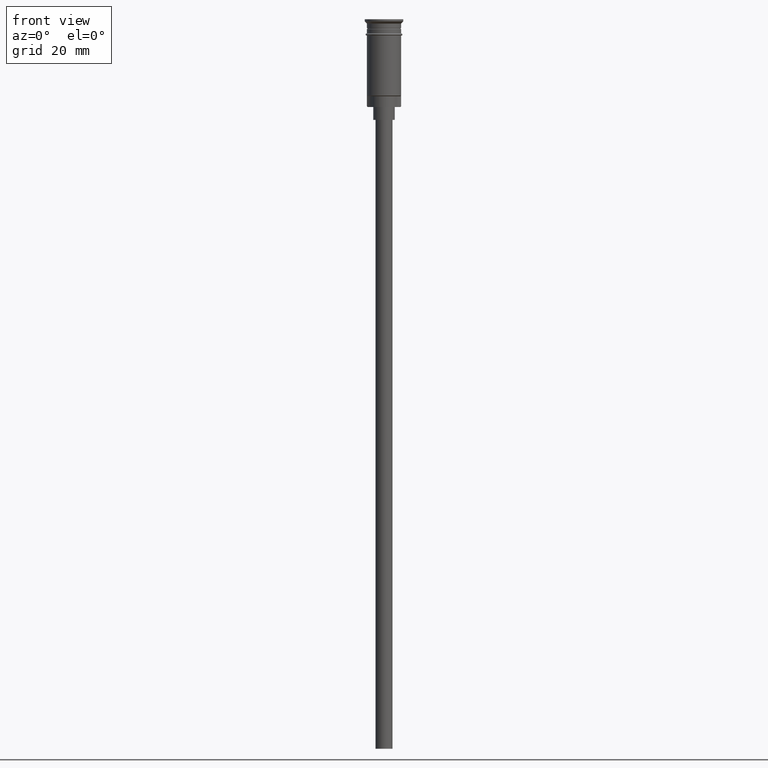
[diagram: clean part render]
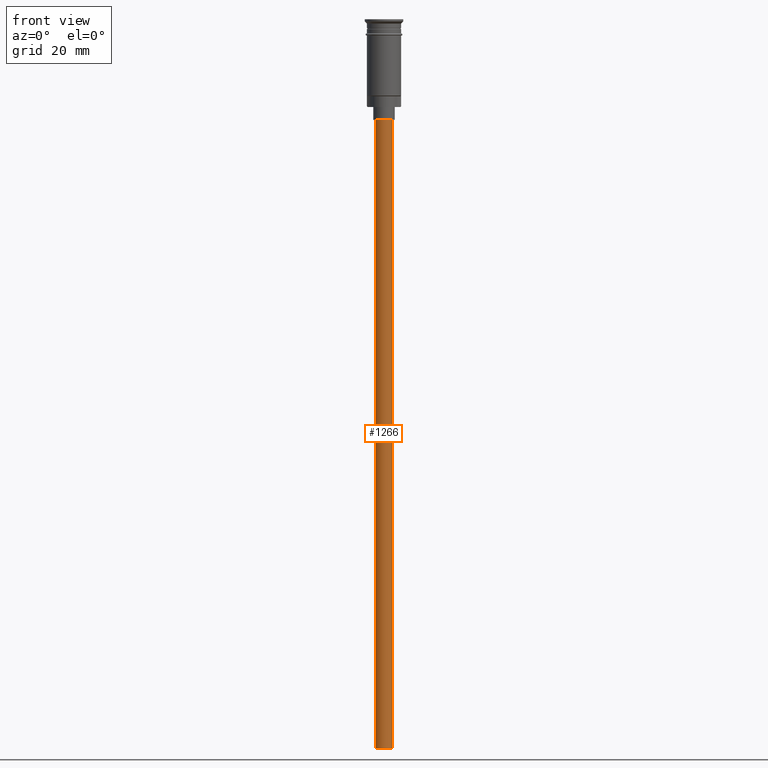
[diagram: same view with one face highlighted and labeled with its STEP entity id]
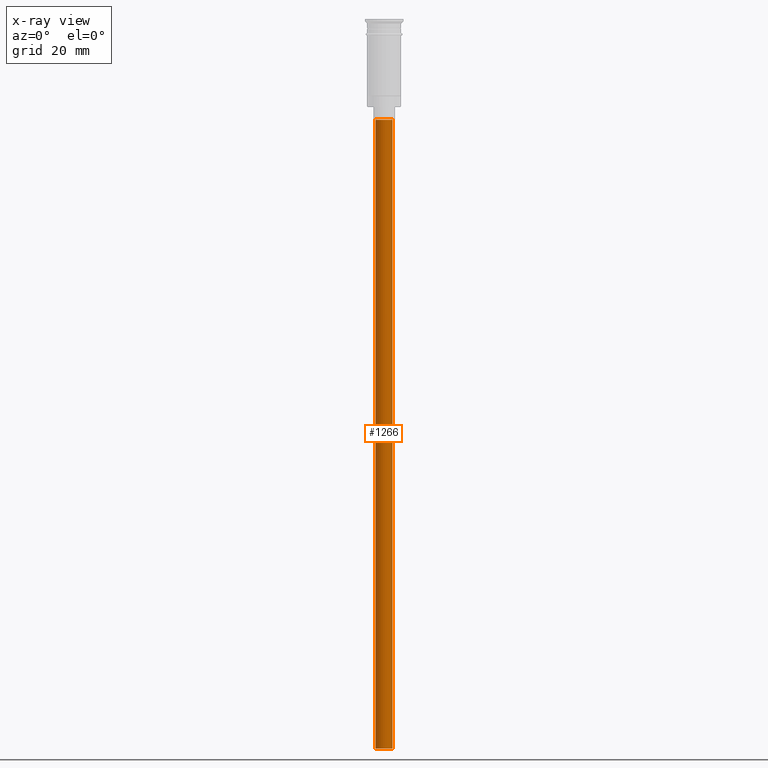
[diagram: x-ray of the same camera — body ghosted, the highlighted face saturated]
A machine part, front view. The second image highlights one B-rep face of the part: STEP entity #1266.
The next image is the same camera in x-ray: the body ghosted, the highlighted face saturated — about 0% of this face is hidden behind the body in this view.
In plain terms, the highlighted cylindrical surface (edge-blend (fillet) strip) has radius 2 mm, axis along (-0, -0, 1).
Its self-contained STEP definition (entity closure, byte-faithful):
#17 = CARTESIAN_POINT ( 'NONE',  ( -2.000000000000000000, 2.449293598294706414E-16, -170.4999999999999716 ) ) ;
#21 = CARTESIAN_POINT ( 'NONE',  ( -2.000000000000000000, 2.449293598294706414E-16, -170.4999999999999716 ) ) ;
#96 = DIRECTION ( 'NONE',  ( -1.000000000000000000, 0.000000000000000000, 0.000000000000000000 ) ) ;
#134 = VECTOR ( 'NONE', #418, 1000.000000000000000 ) ;
#150 = EDGE_CURVE ( 'NONE', #502, #1336, #1538, .T. ) ;
#185 = DIRECTION ( 'NONE',  ( -1.000000000000000000, 0.000000000000000000, 0.000000000000000000 ) ) ;
#193 = CARTESIAN_POINT ( 'NONE',  ( 0.000000000000000000, 0.000000000000000000, -23.49999999999999645 ) ) ;
#214 = VERTEX_POINT ( 'NONE', #928 ) ;
#221 = ORIENTED_EDGE ( 'NONE', *, *, #692, .F. ) ;
#270 = CARTESIAN_POINT ( 'NONE',  ( 2.000000000000000000, 0.000000000000000000, -170.4999999999999716 ) ) ;
#295 = DIRECTION ( 'NONE',  ( 0.000000000000000000, 0.000000000000000000, -1.000000000000000000 ) ) ;
#390 = CARTESIAN_POINT ( 'NONE',  ( 0.000000000000000000, 0.000000000000000000, -170.4999999999999716 ) ) ;
#418 = DIRECTION ( 'NONE',  ( -0.000000000000000000, -0.000000000000000000, 1.000000000000000000 ) ) ;
#427 = ORIENTED_EDGE ( 'NONE', *, *, #1390, .F. ) ;
#497 = DIRECTION ( 'NONE',  ( -0.000000000000000000, -0.000000000000000000, 1.000000000000000000 ) ) ;
#502 = VERTEX_POINT ( 'NONE', #270 ) ;
#504 = VERTEX_POINT ( 'NONE', #17 ) ;
#514 = FACE_OUTER_BOUND ( 'NONE', #1247, .T. ) ;
#534 = CARTESIAN_POINT ( 'NONE',  ( 0.000000000000000000, 0.000000000000000000, -170.4999999999999716 ) ) ;
#610 = CARTESIAN_POINT ( 'NONE',  ( 2.000000000000000000, 0.000000000000000000, -23.49999999999999645 ) ) ;
#628 = VECTOR ( 'NONE', #1254, 1000.000000000000000 ) ;
#636 = LINE ( 'NONE', #21, #628 ) ;
#692 = EDGE_CURVE ( 'NONE', #502, #504, #1214, .T. ) ;
#726 = CIRCLE ( 'NONE', #1371, 2.000000000000000000 ) ;
#874 = ORIENTED_EDGE ( 'NONE', *, *, #1037, .T. ) ;
#928 = CARTESIAN_POINT ( 'NONE',  ( -2.000000000000000000, 2.449293598294706414E-16, -23.49999999999999645 ) ) ;
#1037 = EDGE_CURVE ( 'NONE', #1336, #214, #726, .T. ) ;
#1039 = AXIS2_PLACEMENT_3D ( 'NONE', #534, #295, #96 ) ;
#1126 = DIRECTION ( 'NONE',  ( 1.000000000000000000, 0.000000000000000000, 0.000000000000000000 ) ) ;
#1188 = AXIS2_PLACEMENT_3D ( 'NONE', #390, #497, #1126 ) ;
#1214 = CIRCLE ( 'NONE', #1039, 2.000000000000000000 ) ;
#1247 = EDGE_LOOP ( 'NONE', ( #427, #221, #1384, #874 ) ) ;
#1254 = DIRECTION ( 'NONE',  ( -0.000000000000000000, -0.000000000000000000, 1.000000000000000000 ) ) ;
#1266 = ADVANCED_FACE ( 'NONE', ( #514 ), #1511, .T. ) ;
#1336 = VERTEX_POINT ( 'NONE', #610 ) ;
#1371 = AXIS2_PLACEMENT_3D ( 'NONE', #193, #1548, #185 ) ;
#1384 = ORIENTED_EDGE ( 'NONE', *, *, #150, .T. ) ;
#1390 = EDGE_CURVE ( 'NONE', #504, #214, #636, .T. ) ;
#1511 = CYLINDRICAL_SURFACE ( 'NONE', #1188, 2.000000000000000000 ) ;
#1532 = CARTESIAN_POINT ( 'NONE',  ( 2.000000000000000000, 0.000000000000000000, -170.4999999999999716 ) ) ;
#1538 = LINE ( 'NONE', #1532, #134 ) ;
#1548 = DIRECTION ( 'NONE',  ( 0.000000000000000000, 0.000000000000000000, -1.000000000000000000 ) ) ;